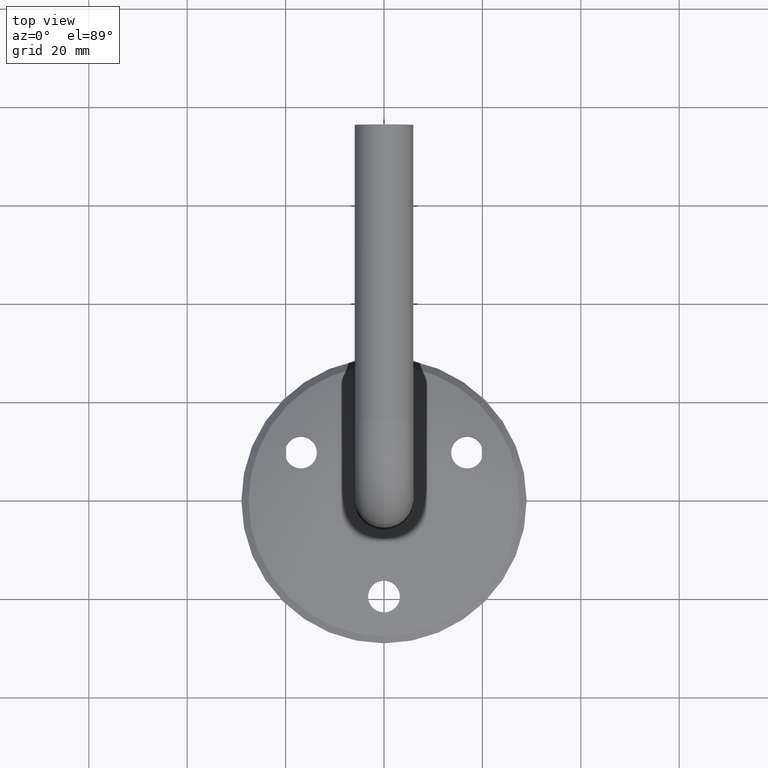
[diagram: clean part render]
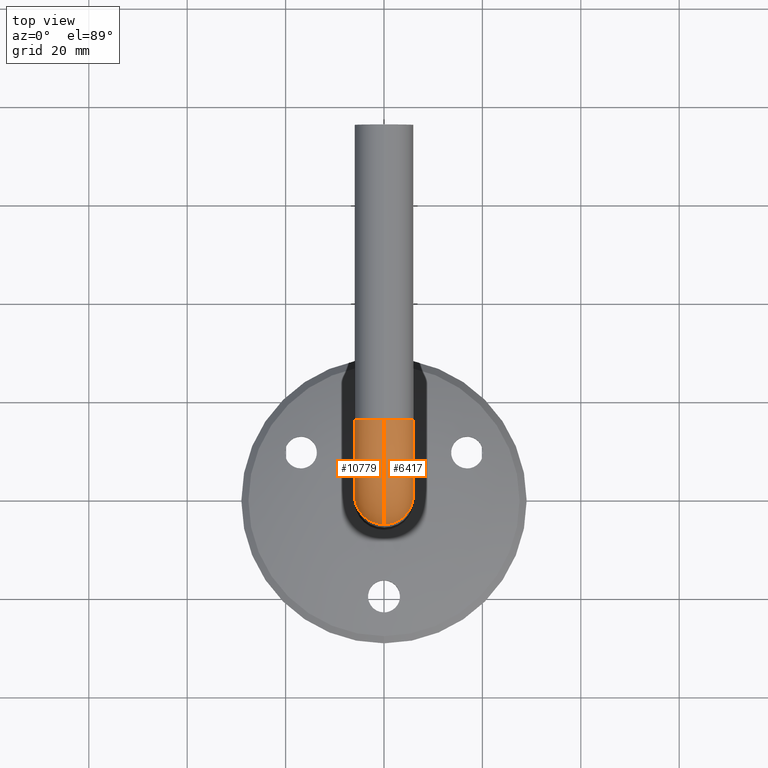
[diagram: same view with one multi-face feature highlighted, each face labeled with its STEP entity id]
A machine part, top view. The highlighted faces form ONE feature: a constant-radius fillet chain: 2 tangent blend faces with common blend radius 6 mm. The faces share edges in the B-rep.
Their STEP definitions:
[1] entity #10779 (Torus):
#1032 = CARTESIAN_POINT ( 'NONE',  ( 0.000000000000000000, -7.368981417143496624E-15, 60.00000000000001421 ) ) ;
#1046 = DIRECTION ( 'NONE',  ( -1.000000000000000000, -0.000000000000000000, 0.000000000000000000 ) ) ;
#1546 = AXIS2_PLACEMENT_3D ( 'NONE', #8870, #13285, #4508 ) ;
#1578 = DIRECTION ( 'NONE',  ( 0.000000000000000000, 0.000000000000000000, 1.000000000000000000 ) ) ;
#2241 = CARTESIAN_POINT ( 'NONE',  ( 7.347880794884114806E-16, 14.99999999999999289, 69.00000000000000000 ) ) ;
#2563 = CIRCLE ( 'NONE', #10900, 21.00000000000000355 ) ;
#2629 = VERTEX_POINT ( 'NONE', #9937 ) ;
#2741 = DIRECTION ( 'NONE',  ( -1.000000000000000000, -0.000000000000000000, 0.000000000000000000 ) ) ;
#3087 = EDGE_CURVE ( 'NONE', #2629, #9090, #6409, .T. ) ;
#3180 = DIRECTION ( 'NONE',  ( 1.000000000000000000, 0.000000000000000000, 0.000000000000000000 ) ) ;
#3277 = DIRECTION ( 'NONE',  ( 0.000000000000000000, 0.000000000000000000, 1.000000000000000000 ) ) ;
#3749 = VERTEX_POINT ( 'NONE', #11125 ) ;
#4305 = EDGE_LOOP ( 'NONE', ( #13397, #12324, #14351, #10074 ) ) ;
#4508 = DIRECTION ( 'NONE',  ( 1.000000000000000000, 0.000000000000000000, 0.000000000000000000 ) ) ;
#4737 = DIRECTION ( 'NONE',  ( -1.000000000000000000, -0.000000000000000000, 0.000000000000000000 ) ) ;
#4757 = EDGE_CURVE ( 'NONE', #5561, #3749, #2563, .T. ) ;
#5434 = CIRCLE ( 'NONE', #1546, 6.000000000000000888 ) ;
#5561 = VERTEX_POINT ( 'NONE', #11853 ) ;
#6397 = AXIS2_PLACEMENT_3D ( 'NONE', #8936, #1046, #6727 ) ;
#6409 = CIRCLE ( 'NONE', #9517, 8.999999999999994671 ) ;
#6727 = DIRECTION ( 'NONE',  ( 0.000000000000000000, 0.000000000000000000, 1.000000000000000000 ) ) ;
#7451 = EDGE_CURVE ( 'NONE', #2629, #5561, #9949, .T. ) ;
#8689 = TOROIDAL_SURFACE ( 'NONE', #6397, 15.00000000000000000, 6.000000000000000888 ) ;
#8870 = CARTESIAN_POINT ( 'NONE',  ( 0.000000000000000000, 14.99999999999999289, 75.00000000000001421 ) ) ;
#8936 = CARTESIAN_POINT ( 'NONE',  ( 0.000000000000000000, 14.99999999999999289, 60.00000000000001421 ) ) ;
#9090 = VERTEX_POINT ( 'NONE', #2241 ) ;
#9125 = EDGE_CURVE ( 'NONE', #9090, #3749, #5434, .T. ) ;
#9167 = CARTESIAN_POINT ( 'NONE',  ( 0.000000000000000000, 14.99999999999999289, 60.00000000000001421 ) ) ;
#9517 = AXIS2_PLACEMENT_3D ( 'NONE', #11698, #2741, #1578 ) ;
#9937 = CARTESIAN_POINT ( 'NONE',  ( 7.347880794884120722E-16, 5.999999999999993783, 60.00000000000001421 ) ) ;
#9949 = CIRCLE ( 'NONE', #11938, 6.000000000000000888 ) ;
#10074 = ORIENTED_EDGE ( 'NONE', *, *, #3087, .F. ) ;
#10779 = ADVANCED_FACE ( 'NONE', ( #11820 ), #8689, .T. ) ;
#10900 = AXIS2_PLACEMENT_3D ( 'NONE', #9167, #4737, #13474 ) ;
#11125 = CARTESIAN_POINT ( 'NONE',  ( 0.000000000000000000, 14.99999999999999289, 81.00000000000001421 ) ) ;
#11698 = CARTESIAN_POINT ( 'NONE',  ( 7.347880794884120722E-16, 14.99999999999999289, 60.00000000000001421 ) ) ;
#11820 = FACE_OUTER_BOUND ( 'NONE', #4305, .T. ) ;
#11853 = CARTESIAN_POINT ( 'NONE',  ( 0.000000000000000000, -6.000000000000008882, 60.00000000000001421 ) ) ;
#11938 = AXIS2_PLACEMENT_3D ( 'NONE', #1032, #3277, #3180 ) ;
#12324 = ORIENTED_EDGE ( 'NONE', *, *, #4757, .T. ) ;
#13285 = DIRECTION ( 'NONE',  ( 0.000000000000000000, 1.000000000000000000, -1.228163569523915759E-16 ) ) ;
#13397 = ORIENTED_EDGE ( 'NONE', *, *, #7451, .T. ) ;
#13474 = DIRECTION ( 'NONE',  ( 0.000000000000000000, 0.000000000000000000, 1.000000000000000000 ) ) ;
#14351 = ORIENTED_EDGE ( 'NONE', *, *, #9125, .F. ) ;
[2] entity #6417 (Torus):
#245 = CARTESIAN_POINT ( 'NONE',  ( 0.000000000000000000, 14.99999999999999289, 60.00000000000001421 ) ) ;
#804 = FACE_OUTER_BOUND ( 'NONE', #2555, .T. ) ;
#955 = ORIENTED_EDGE ( 'NONE', *, *, #3087, .T. ) ;
#1025 = CARTESIAN_POINT ( 'NONE',  ( 0.000000000000000000, -7.368981417143496624E-15, 60.00000000000001421 ) ) ;
#1578 = DIRECTION ( 'NONE',  ( 0.000000000000000000, 0.000000000000000000, 1.000000000000000000 ) ) ;
#1972 = CARTESIAN_POINT ( 'NONE',  ( 0.000000000000000000, 14.99999999999999289, 75.00000000000001421 ) ) ;
#2241 = CARTESIAN_POINT ( 'NONE',  ( 7.347880794884114806E-16, 14.99999999999999289, 69.00000000000000000 ) ) ;
#2555 = EDGE_LOOP ( 'NONE', ( #3032, #7388, #955, #10075 ) ) ;
#2563 = CIRCLE ( 'NONE', #10900, 21.00000000000000355 ) ;
#2629 = VERTEX_POINT ( 'NONE', #9937 ) ;
#2741 = DIRECTION ( 'NONE',  ( -1.000000000000000000, -0.000000000000000000, 0.000000000000000000 ) ) ;
#2938 = EDGE_CURVE ( 'NONE', #3749, #9090, #9863, .T. ) ;
#3032 = ORIENTED_EDGE ( 'NONE', *, *, #4757, .F. ) ;
#3087 = EDGE_CURVE ( 'NONE', #2629, #9090, #6409, .T. ) ;
#3126 = DIRECTION ( 'NONE',  ( 1.000000000000000000, 0.000000000000000000, 0.000000000000000000 ) ) ;
#3207 = AXIS2_PLACEMENT_3D ( 'NONE', #1025, #7488, #3126 ) ;
#3749 = VERTEX_POINT ( 'NONE', #11125 ) ;
#4301 = TOROIDAL_SURFACE ( 'NONE', #5814, 15.00000000000000000, 6.000000000000000888 ) ;
#4497 = EDGE_CURVE ( 'NONE', #5561, #2629, #10207, .T. ) ;
#4737 = DIRECTION ( 'NONE',  ( -1.000000000000000000, -0.000000000000000000, 0.000000000000000000 ) ) ;
#4757 = EDGE_CURVE ( 'NONE', #5561, #3749, #2563, .T. ) ;
#5561 = VERTEX_POINT ( 'NONE', #11853 ) ;
#5695 = DIRECTION ( 'NONE',  ( 0.000000000000000000, 0.000000000000000000, 1.000000000000000000 ) ) ;
#5814 = AXIS2_PLACEMENT_3D ( 'NONE', #245, #13430, #5695 ) ;
#6409 = CIRCLE ( 'NONE', #9517, 8.999999999999994671 ) ;
#6417 = ADVANCED_FACE ( 'NONE', ( #804 ), #4301, .T. ) ;
#7388 = ORIENTED_EDGE ( 'NONE', *, *, #4497, .T. ) ;
#7488 = DIRECTION ( 'NONE',  ( 0.000000000000000000, 0.000000000000000000, 1.000000000000000000 ) ) ;
#9090 = VERTEX_POINT ( 'NONE', #2241 ) ;
#9167 = CARTESIAN_POINT ( 'NONE',  ( 0.000000000000000000, 14.99999999999999289, 60.00000000000001421 ) ) ;
#9517 = AXIS2_PLACEMENT_3D ( 'NONE', #11698, #2741, #1578 ) ;
#9863 = CIRCLE ( 'NONE', #13486, 6.000000000000000888 ) ;
#9937 = CARTESIAN_POINT ( 'NONE',  ( 7.347880794884120722E-16, 5.999999999999993783, 60.00000000000001421 ) ) ;
#10075 = ORIENTED_EDGE ( 'NONE', *, *, #2938, .F. ) ;
#10207 = CIRCLE ( 'NONE', #3207, 6.000000000000000888 ) ;
#10900 = AXIS2_PLACEMENT_3D ( 'NONE', #9167, #4737, #13474 ) ;
#11125 = CARTESIAN_POINT ( 'NONE',  ( 0.000000000000000000, 14.99999999999999289, 81.00000000000001421 ) ) ;
#11698 = CARTESIAN_POINT ( 'NONE',  ( 7.347880794884120722E-16, 14.99999999999999289, 60.00000000000001421 ) ) ;
#11853 = CARTESIAN_POINT ( 'NONE',  ( 0.000000000000000000, -6.000000000000008882, 60.00000000000001421 ) ) ;
#11999 = DIRECTION ( 'NONE',  ( 0.000000000000000000, 1.000000000000000000, -1.228163569523915759E-16 ) ) ;
#12130 = DIRECTION ( 'NONE',  ( 1.000000000000000000, 0.000000000000000000, 0.000000000000000000 ) ) ;
#13430 = DIRECTION ( 'NONE',  ( -1.000000000000000000, -0.000000000000000000, 0.000000000000000000 ) ) ;
#13474 = DIRECTION ( 'NONE',  ( 0.000000000000000000, 0.000000000000000000, 1.000000000000000000 ) ) ;
#13486 = AXIS2_PLACEMENT_3D ( 'NONE', #1972, #11999, #12130 ) ;